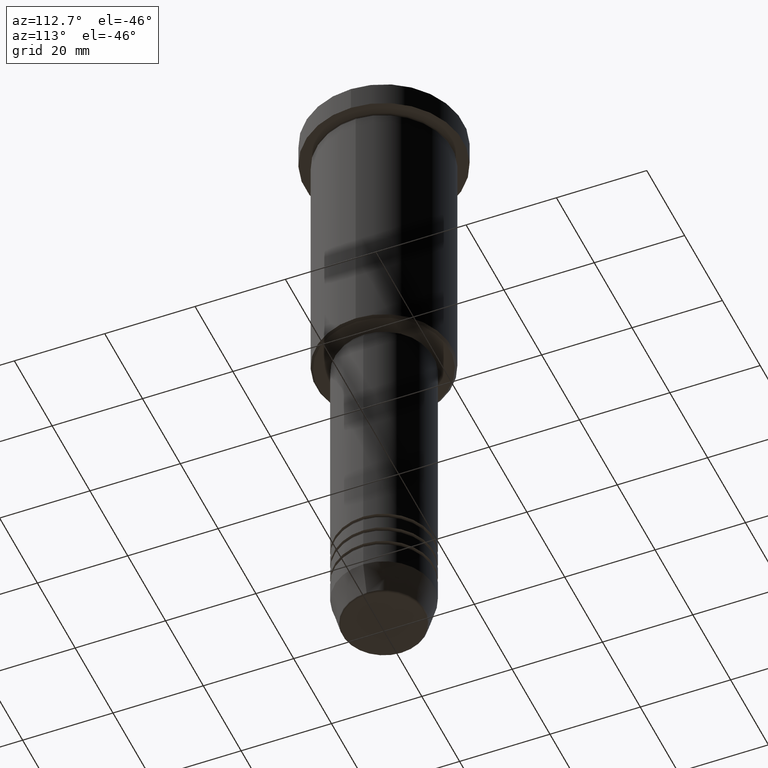
[diagram: clean part render]
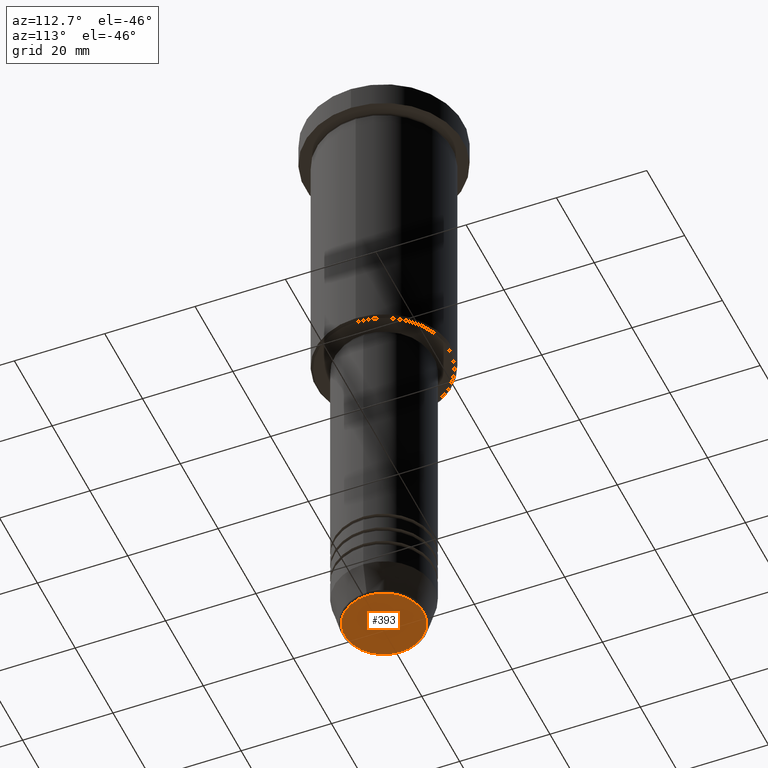
[diagram: same view with one face highlighted and labeled with its STEP entity id]
A machine part, auxiliary view. The second image highlights one B-rep face of the part: STEP entity #393.
In plain terms, the highlighted planar face has unit normal (0, -0, 1).
Its self-contained STEP definition (entity closure, byte-faithful):
#76 = VERTEX_POINT ( 'NONE', #79 ) ;
#79 = CARTESIAN_POINT ( 'NONE',  ( 8.740692158992656502, 0.000000000000000000, -141.0000000000000000 ) ) ;
#108 = ORIENTED_EDGE ( 'NONE', *, *, #848, .T. ) ;
#152 = DIRECTION ( 'NONE',  ( 0.000000000000000000, -0.000000000000000000, 1.000000000000000000 ) ) ;
#177 = EDGE_LOOP ( 'NONE', ( #108, #960 ) ) ;
#264 = DIRECTION ( 'NONE',  ( 0.000000000000000000, 0.000000000000000000, -1.000000000000000000 ) ) ;
#389 = CIRCLE ( 'NONE', #900, 8.740692158992656502 ) ;
#393 = ADVANCED_FACE ( 'NONE', ( #433 ), #610, .F. ) ;
#427 = CARTESIAN_POINT ( 'NONE',  ( -8.740692158992656502, 1.099999016768739653E-15, -141.0000000000000000 ) ) ;
#433 = FACE_OUTER_BOUND ( 'NONE', #177, .T. ) ;
#510 = AXIS2_PLACEMENT_3D ( 'NONE', #1140, #152, #982 ) ;
#610 = PLANE ( 'NONE',  #510 ) ;
#613 = CARTESIAN_POINT ( 'NONE',  ( 0.000000000000000000, 0.000000000000000000, -141.0000000000000000 ) ) ;
#709 = CARTESIAN_POINT ( 'NONE',  ( 0.000000000000000000, 0.000000000000000000, -141.0000000000000000 ) ) ;
#848 = EDGE_CURVE ( 'NONE', #76, #1099, #389, .T. ) ;
#892 = EDGE_CURVE ( 'NONE', #1099, #76, #902, .T. ) ;
#900 = AXIS2_PLACEMENT_3D ( 'NONE', #613, #988, #1017 ) ;
#902 = CIRCLE ( 'NONE', #1050, 8.740692158992656502 ) ;
#960 = ORIENTED_EDGE ( 'NONE', *, *, #892, .T. ) ;
#982 = DIRECTION ( 'NONE',  ( 1.000000000000000000, 0.000000000000000000, 0.000000000000000000 ) ) ;
#988 = DIRECTION ( 'NONE',  ( 0.000000000000000000, 0.000000000000000000, -1.000000000000000000 ) ) ;
#1017 = DIRECTION ( 'NONE',  ( 1.000000000000000000, 0.000000000000000000, 0.000000000000000000 ) ) ;
#1050 = AXIS2_PLACEMENT_3D ( 'NONE', #709, #264, #1169 ) ;
#1099 = VERTEX_POINT ( 'NONE', #427 ) ;
#1140 = CARTESIAN_POINT ( 'NONE',  ( 0.000000000000000000, 0.000000000000000000, -141.0000000000000000 ) ) ;
#1169 = DIRECTION ( 'NONE',  ( 1.000000000000000000, 0.000000000000000000, 0.000000000000000000 ) ) ;